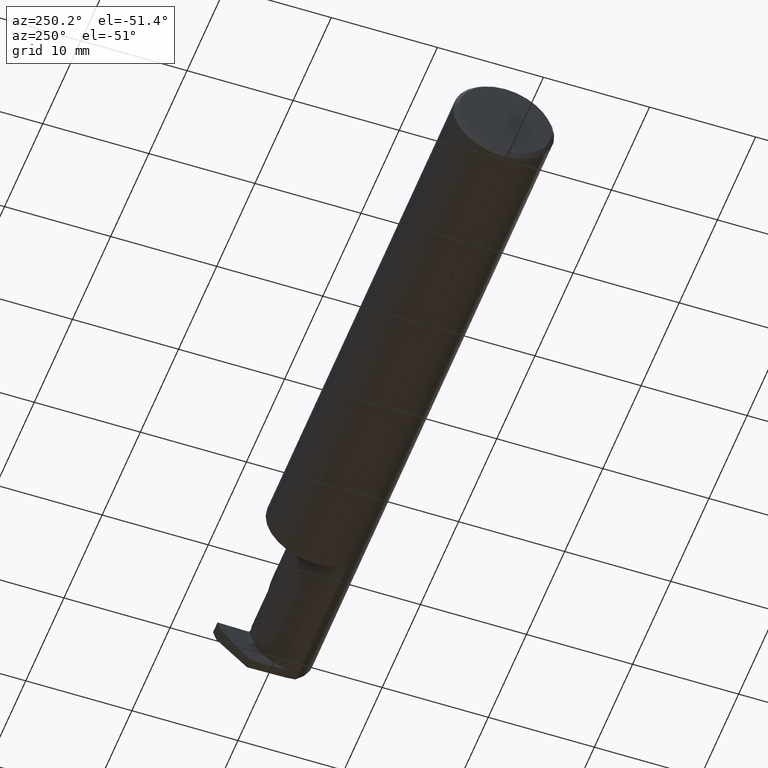
[diagram: clean part render]
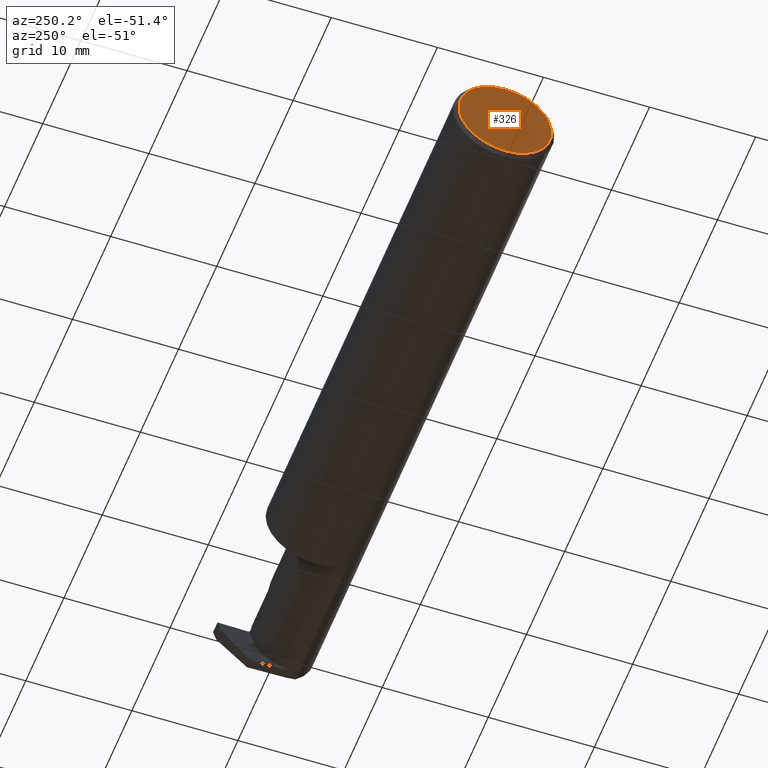
[diagram: same view with one face highlighted and labeled with its STEP entity id]
A machine part, auxiliary view. The second image highlights one B-rep face of the part: STEP entity #326.
In plain terms, the highlighted planar face has unit normal (1, 0, 0).
Its self-contained STEP definition (entity closure, byte-faithful):
#34 = CARTESIAN_POINT ( 'NONE',  ( 0.000000000000000000, 0.000000000000000000, -0.1723499999999999754 ) ) ;
#103 = ORIENTED_EDGE ( 'NONE', *, *, #648, .T. ) ;
#110 = AXIS2_PLACEMENT_3D ( 'NONE', #963, #225, #814 ) ;
#203 = CARTESIAN_POINT ( 'NONE',  ( 0.000000000000000000, 2.202527268266524596E-17, 0.1723499999999999754 ) ) ;
#218 = DIRECTION ( 'NONE',  ( -1.000000000000000000, -0.000000000000000000, -0.000000000000000000 ) ) ;
#225 = DIRECTION ( 'NONE',  ( 1.000000000000000000, 0.000000000000000000, 0.000000000000000000 ) ) ;
#238 = ORIENTED_EDGE ( 'NONE', *, *, #245, .T. ) ;
#245 = EDGE_CURVE ( 'NONE', #509, #954, #632, .T. ) ;
#296 = CARTESIAN_POINT ( 'NONE',  ( 0.000000000000000000, 0.000000000000000000, 0.000000000000000000 ) ) ;
#306 = AXIS2_PLACEMENT_3D ( 'NONE', #296, #949, #783 ) ;
#326 = ADVANCED_FACE ( 'NONE', ( #720 ), #636, .F. ) ;
#331 = EDGE_LOOP ( 'NONE', ( #238, #103 ) ) ;
#499 = AXIS2_PLACEMENT_3D ( 'NONE', #533, #218, #792 ) ;
#509 = VERTEX_POINT ( 'NONE', #34 ) ;
#533 = CARTESIAN_POINT ( 'NONE',  ( 0.000000000000000000, 0.000000000000000000, 0.000000000000000000 ) ) ;
#632 = CIRCLE ( 'NONE', #306, 0.1723499999999999754 ) ;
#634 = CIRCLE ( 'NONE', #499, 0.1723499999999999754 ) ;
#636 = PLANE ( 'NONE',  #110 ) ;
#648 = EDGE_CURVE ( 'NONE', #954, #509, #634, .T. ) ;
#720 = FACE_OUTER_BOUND ( 'NONE', #331, .T. ) ;
#783 = DIRECTION ( 'NONE',  ( 0.000000000000000000, 0.000000000000000000, 1.000000000000000000 ) ) ;
#792 = DIRECTION ( 'NONE',  ( 0.000000000000000000, 0.000000000000000000, 1.000000000000000000 ) ) ;
#814 = DIRECTION ( 'NONE',  ( 0.000000000000000000, 0.000000000000000000, -1.000000000000000000 ) ) ;
#949 = DIRECTION ( 'NONE',  ( -1.000000000000000000, -0.000000000000000000, -0.000000000000000000 ) ) ;
#954 = VERTEX_POINT ( 'NONE', #203 ) ;
#963 = CARTESIAN_POINT ( 'NONE',  ( 0.000000000000000000, 0.000000000000000000, 0.000000000000000000 ) ) ;